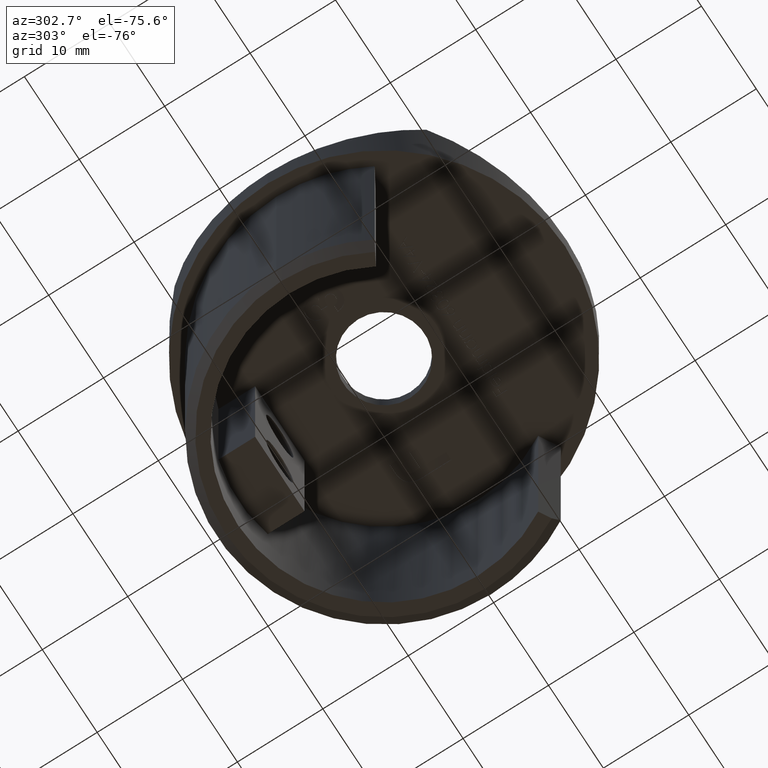
[diagram: clean part render]
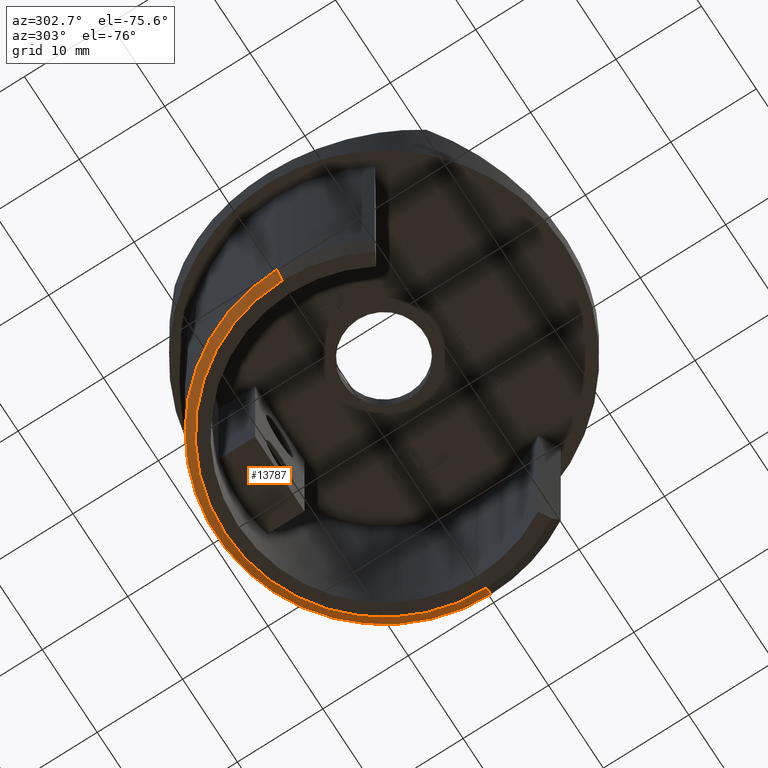
[diagram: same view with one face highlighted and labeled with its STEP entity id]
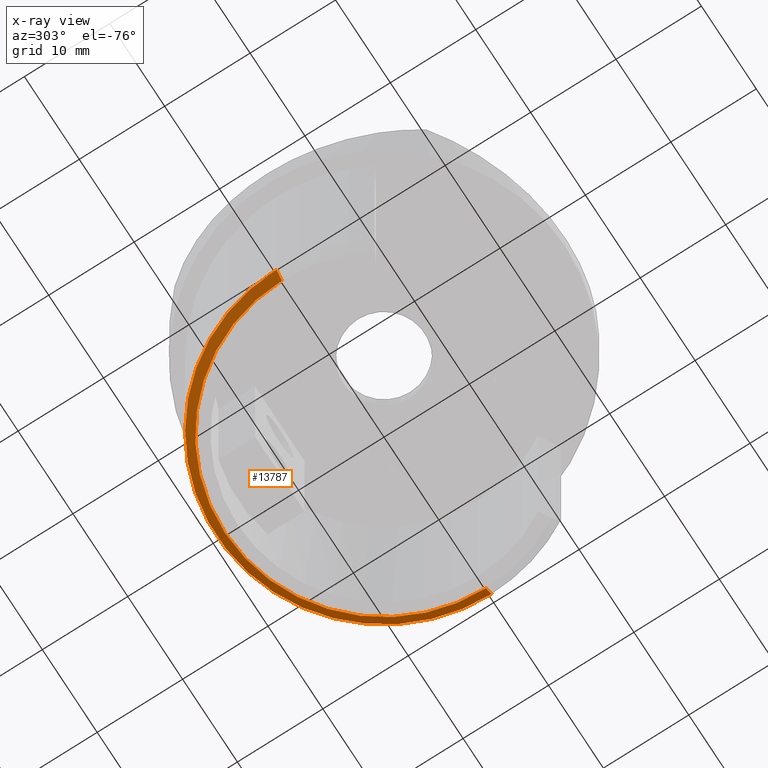
[diagram: x-ray of the same camera — body ghosted, the highlighted face saturated]
A machine part, auxiliary view. The second image highlights one B-rep face of the part: STEP entity #13787.
The next image is the same camera in x-ray: the body ghosted, the highlighted face saturated — about 0% of this face is hidden behind the body in this view.
In plain terms, the highlighted conical surface has half-angle 45 deg.
Its self-contained STEP definition (entity closure, byte-faithful):
#477 = CARTESIAN_POINT ( 'NONE',  ( 19.59999999999999787, 0.000000000000000000, -29.00000000000002132 ) ) ;
#1757 = EDGE_CURVE ( 'NONE', #12758, #10733, #12759, .T. ) ;
#2055 = CIRCLE ( 'NONE', #11721, 19.59999999999999787 ) ;
#2472 = DIRECTION ( 'NONE',  ( -1.000000000000000000, 0.000000000000000000, 0.000000000000000000 ) ) ;
#2514 = VECTOR ( 'NONE', #6334, 1000.000000000000000 ) ;
#2673 = EDGE_CURVE ( 'NONE', #14221, #12758, #15003, .T. ) ;
#3171 = VERTEX_POINT ( 'NONE', #8201 ) ;
#4481 = DIRECTION ( 'NONE',  ( 0.000000000000000000, 0.000000000000000000, 1.000000000000000000 ) ) ;
#5434 = ORIENTED_EDGE ( 'NONE', *, *, #2673, .F. ) ;
#5482 = DIRECTION ( 'NONE',  ( 1.000000000000000000, 0.000000000000000000, 0.000000000000000000 ) ) ;
#6334 = DIRECTION ( 'NONE',  ( -0.7071067811865487940, 8.659560562354948882E-17, 0.7071067811865463515 ) ) ;
#6397 = EDGE_CURVE ( 'NONE', #10733, #3171, #2055, .T. ) ;
#6573 = CARTESIAN_POINT ( 'NONE',  ( 18.60000000000001918, 0.000000000000000000, -30.00000000000000000 ) ) ;
#6783 = CARTESIAN_POINT ( 'NONE',  ( 0.000000000000000000, 0.000000000000000000, -30.00000000000000000 ) ) ;
#6881 = EDGE_CURVE ( 'NONE', #14221, #3171, #9368, .T. ) ;
#7410 = CARTESIAN_POINT ( 'NONE',  ( -18.60000000000001918, 2.339075386371445905E-15, -30.00000000000000000 ) ) ;
#8201 = CARTESIAN_POINT ( 'NONE',  ( -19.59999999999999787, 2.400307726328812296E-15, -29.00000000000002132 ) ) ;
#8478 = CARTESIAN_POINT ( 'NONE',  ( 0.000000000000000000, 0.000000000000000000, -29.00000000000002132 ) ) ;
#8735 = AXIS2_PLACEMENT_3D ( 'NONE', #6783, #4481, #5482 ) ;
#8776 = CARTESIAN_POINT ( 'NONE',  ( -18.60000000000001918, 2.277843046414079514E-15, -30.00000000000000000 ) ) ;
#9076 = DIRECTION ( 'NONE',  ( 0.7071067811865487940, 0.000000000000000000, 0.7071067811865463515 ) ) ;
#9230 = ORIENTED_EDGE ( 'NONE', *, *, #1757, .F. ) ;
#9368 = LINE ( 'NONE', #8776, #2514 ) ;
#9446 = CONICAL_SURFACE ( 'NONE', #8735, 18.60000000000001918, 0.7853981633974500554 ) ;
#10063 = EDGE_LOOP ( 'NONE', ( #5434, #12498, #10182, #9230 ) ) ;
#10182 = ORIENTED_EDGE ( 'NONE', *, *, #6397, .F. ) ;
#10555 = DIRECTION ( 'NONE',  ( 0.000000000000000000, 0.000000000000000000, -1.000000000000000000 ) ) ;
#10733 = VERTEX_POINT ( 'NONE', #477 ) ;
#11021 = VECTOR ( 'NONE', #9076, 1000.000000000000000 ) ;
#11721 = AXIS2_PLACEMENT_3D ( 'NONE', #8478, #15670, #2472 ) ;
#11834 = CARTESIAN_POINT ( 'NONE',  ( 18.60000000000001918, 0.000000000000000000, -30.00000000000000000 ) ) ;
#12414 = AXIS2_PLACEMENT_3D ( 'NONE', #15417, #10555, #14206 ) ;
#12498 = ORIENTED_EDGE ( 'NONE', *, *, #6881, .T. ) ;
#12758 = VERTEX_POINT ( 'NONE', #11834 ) ;
#12759 = LINE ( 'NONE', #6573, #11021 ) ;
#12855 = FACE_OUTER_BOUND ( 'NONE', #10063, .T. ) ;
#13787 = ADVANCED_FACE ( 'NONE', ( #12855 ), #9446, .T. ) ;
#14206 = DIRECTION ( 'NONE',  ( -1.000000000000000000, 0.000000000000000000, 0.000000000000000000 ) ) ;
#14221 = VERTEX_POINT ( 'NONE', #7410 ) ;
#15003 = CIRCLE ( 'NONE', #12414, 18.60000000000001918 ) ;
#15417 = CARTESIAN_POINT ( 'NONE',  ( 0.000000000000000000, 0.000000000000000000, -30.00000000000000000 ) ) ;
#15670 = DIRECTION ( 'NONE',  ( 0.000000000000000000, 0.000000000000000000, 1.000000000000000000 ) ) ;